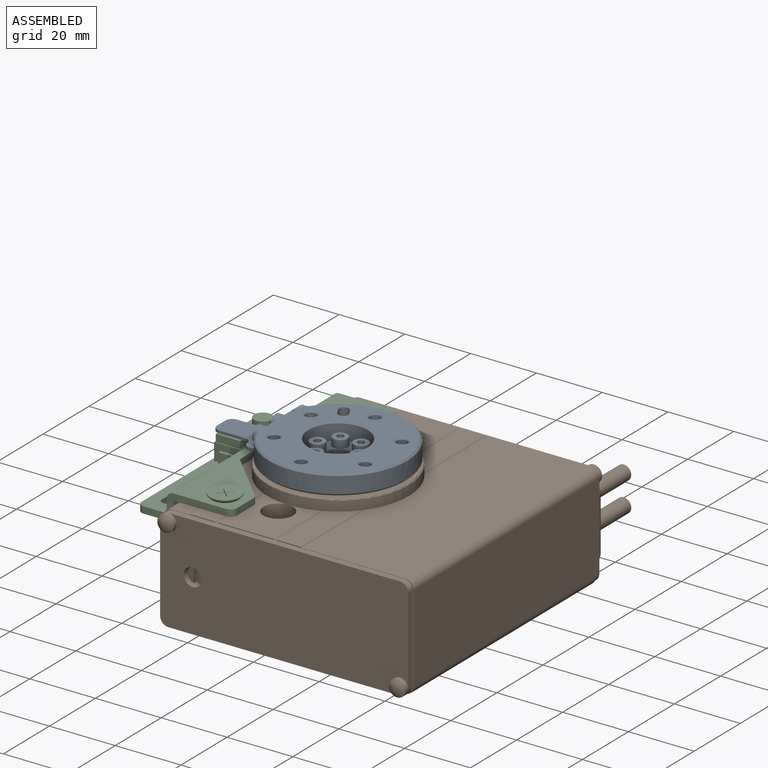
[diagram: assembled view]
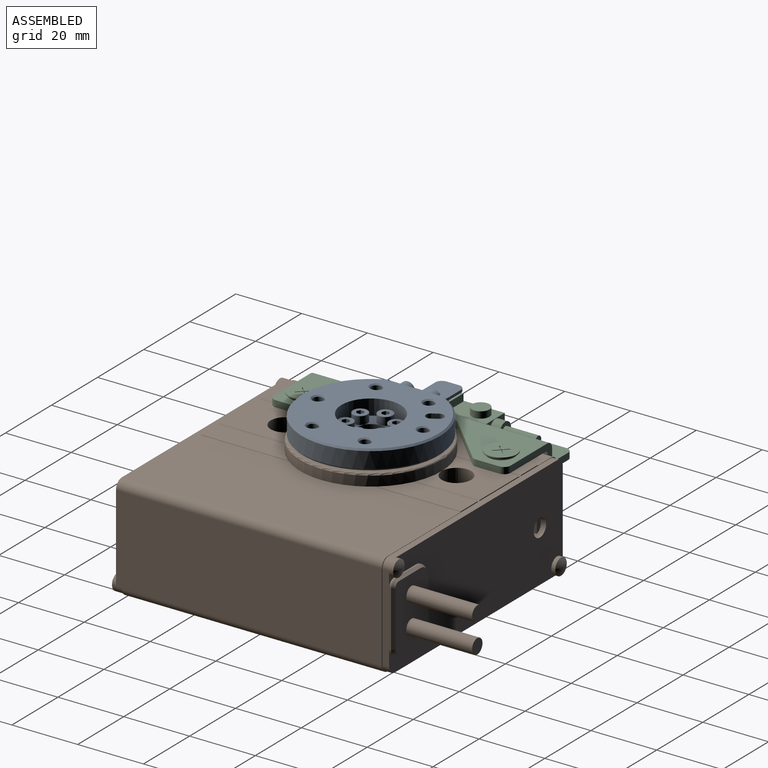
[diagram: assembled view, second angle]
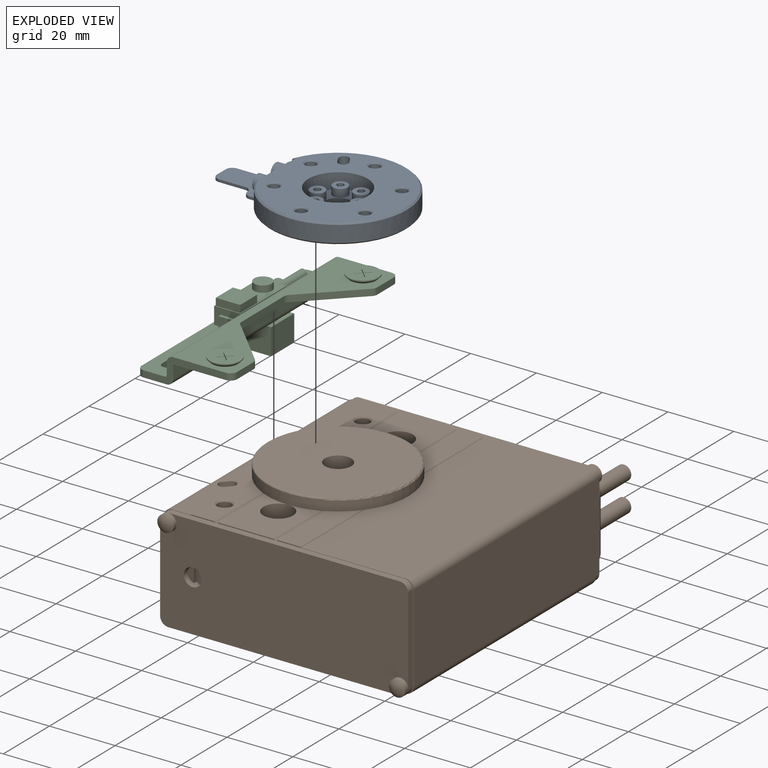
[diagram: exploded view]
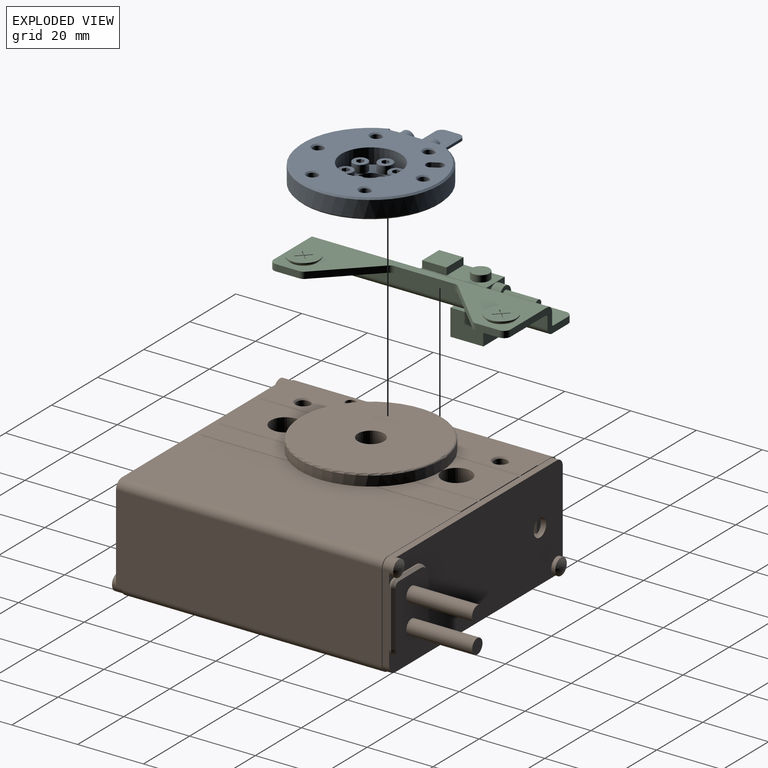
[diagram: exploded view, second angle]
ASSEMBLY  parts=3 mates=2
PART A: 116 faces, bbox 56.5x42x6.5 mm
  f0: plane 2.31x2mm, normal (0,0,1), area 3.5mm2, adj f6,f7,f8,f9,f10,f11
  f1: plane 2.31x2mm, normal (0,0,1), area 3.5mm2, adj f12,f13,f14,f15,f16,f17
  f2: plane 2.31x2mm, normal (0,0,1), area 3.5mm2, adj f18,f19,f20,f21,f22,f23
  f3: plane 2.31x2mm, normal (0,0,1), area 3.5mm2, adj f24,f25,f26,f27,f28,f29
  f4: plane 2.31x2mm, normal (0,0,1), area 3.5mm2, adj f30,f31,f32,f33,f34,f35
  f5: plane 2.31x2mm, normal (0,0,1), area 3.5mm2, adj f36,f37,f38,f39,f40,f41
  f6: plane 1.25x1mm, normal (-0.5,0.87,0), area 1.4mm2, adj f0,f7,f11,f46
  f7: plane 1.25x1mm, normal (0.5,0.87,0), area 1.4mm2, adj f0,f6,f8,f46
  f8: plane 1.25x1.15mm, normal (1,0,0), area 1.4mm2, adj f0,f7,f9,f46
  f9: plane 1.25x1mm, normal (0.5,-0.87,0), area 1.4mm2, adj f0,f8,f10,f46
  f10: plane 1.25x1mm, normal (-0.5,-0.87,0), area 1.4mm2, adj f0,f9,f11,f46
  f11: plane 1.25x1.15mm, normal (-1,0,0), area 1.4mm2, adj f0,f6,f10,f46
  f12: plane 1.25x1mm, normal (-0.5,0.87,0), area 1.4mm2, adj f1,f13,f17,f47
  f13: plane 1.25x1mm, normal (0.5,0.87,0), area 1.4mm2, adj f1,f12,f14,f47
  f14: plane 1.25x1.15mm, normal (1,0,0), area 1.4mm2, adj f1,f13,f15,f47
  f15: plane 1.25x1mm, normal (0.5,-0.87,0), area 1.4mm2, adj f1,f14,f16,f47
  f16: plane 1.25x1mm, normal (-0.5,-0.87,0), area 1.4mm2, adj f1,f15,f17,f47
  f17: plane 1.25x1.15mm, normal (-1,0,0), area 1.4mm2, adj f1,f12,f16,f47
  f18: plane 1.25x1mm, normal (-0.5,0.87,0), area 1.4mm2, adj f2,f19,f23,f48
  f19: plane 1.25x1mm, normal (0.5,0.87,0), area 1.4mm2, adj f2,f18,f20,f48
  f20: plane 1.25x1.15mm, normal (1,0,0), area 1.4mm2, adj f2,f19,f21,f48
  f21: plane 1.25x1mm, normal (0.5,-0.87,0), area 1.4mm2, adj f2,f20,f22,f48
  f22: plane 1.25x1mm, normal (-0.5,-0.87,0), area 1.4mm2, adj f2,f21,f23,f48
  f23: plane 1.25x1.15mm, normal (-1,0,0), area 1.4mm2, adj f2,f18,f22,f48
  f24: plane 1.25x1mm, normal (-0.5,0.87,0), area 1.4mm2, adj f3,f25,f29,f49
  f25: plane 1.25x1mm, normal (0.5,0.87,0), area 1.4mm2, adj f3,f24,f26,f49
  f26: plane 1.25x1.15mm, normal (1,0,0), area 1.4mm2, adj f3,f25,f27,f49
  f27: plane 1.25x1mm, normal (0.5,-0.87,0), area 1.4mm2, adj f3,f26,f28,f49
  f28: plane 1.25x1mm, normal (-0.5,-0.87,0), area 1.4mm2, adj f3,f27,f29,f49
  f29: plane 1.25x1.15mm, normal (-1,0,0), area 1.4mm2, adj f3,f24,f28,f49
  f30: plane 1.25x1mm, normal (-0.5,0.87,0), area 1.4mm2, adj f4,f31,f35,f50
  f31: plane 1.25x1mm, normal (0.5,0.87,0), area 1.4mm2, adj f4,f30,f32,f50
  f32: plane 1.25x1.15mm, normal (1,0,0), area 1.4mm2, adj f4,f31,f33,f50
  f33: plane 1.25x1mm, normal (0.5,-0.87,0), area 1.4mm2, adj f4,f32,f34,f50
  f34: plane 1.25x1mm, normal (-0.5,-0.87,0), area 1.4mm2, adj f4,f33,f35,f50
  f35: plane 1.25x1.15mm, normal (-1,0,0), area 1.4mm2, adj f4,f30,f34,f50
  f36: plane 1.25x1mm, normal (-0.5,0.87,0), area 1.4mm2, adj f5,f37,f41,f51
  f37: plane 1.25x1mm, normal (0.5,0.87,0), area 1.4mm2, adj f5,f36,f38,f51
  f38: plane 1.25x1.15mm, normal (1,0,0), area 1.4mm2, adj f5,f37,f39,f51
  f39: plane 1.25x1mm, normal (0.5,-0.87,0), area 1.4mm2, adj f5,f38,f40,f51
  f40: plane 1.25x1mm, normal (-0.5,-0.87,0), area 1.4mm2, adj f5,f39,f41,f51
  f41: plane 1.25x1.15mm, normal (-1,0,0), area 1.4mm2, adj f5,f36,f40,f51
  f42: plane 4.3x4.3mm, normal (-1,0,0), area 14.5mm2, adj f52
  f43: plane 4.3x4.3mm, normal (-1,0,0), area 14.5mm2, adj f53
  f44: plane 0.8x0.1mm, normal (1,0,0), area 0.1mm2, adj f54,f55,f72,f78
  f45: plane 0.8x0.1mm, normal (1,0,0), area 0.1mm2, adj f61,f62,f72,f78
  f46: plane 4.3x4.3mm, normal (0,0,1), area 11.1mm2, adj f6,f7,f8,f9,f10,f11,f64
  f47: plane 4.3x4.3mm, normal (0,0,1), area 11.1mm2, adj f12,f13,f14,f15,f16,f17,f65
  f48: plane 4.3x4.3mm, normal (0,0,1), area 11.1mm2, adj f18,f19,f20,f21,f22,f23,f66
  f49: plane 4.3x4.3mm, normal (0,0,1), area 11.1mm2, adj f24,f25,f26,f27,f28,f29,f67
  f50: plane 4.3x4.3mm, normal (0,0,1), area 11.1mm2, adj f30,f31,f32,f33,f34,f35,f68
  f51: plane 4.3x4.3mm, normal (0,0,1), area 11.1mm2, adj f36,f37,f38,f39,f40,f41,f69
  f52: torus R=2.15mm, axis (1,0,0), area 2.2mm2, adj f42,f73
  f53: torus R=2.15mm, axis (1,0,0), area 2.2mm2, adj f43,f74
  f54: cylinder r=2mm len=2mm, axis (0,0,-1), area 2.5mm2, adj f44,f72,f75,f78
  f55: cylinder r=2mm len=2mm, axis (0,0,-1), area 2.5mm2, adj f44,f56,f72,f78
  f56: plane 8x0.8mm, normal (0,-1,0), area 6.4mm2, adj f55,f57,f72,f78
  f57: cylinder r=2mm len=2mm, axis (0,0,-1), area 2.5mm2, adj f56,f58,f72,f78
  f58: plane 3.8x0.8mm, normal (-1,0,0), area 3mm2, adj f57,f59,f72,f78
  f59: cylinder r=2mm len=2mm, axis (0,0,-1), area 2.5mm2, adj f58,f60,f72,f78
  f60: plane 8x0.8mm, normal (0,1,0), area 6.4mm2, adj f59,f61,f72,f78
  f61: cylinder r=2mm len=2mm, axis (0,0,-1), area 2.5mm2, adj f45,f60,f72,f78
  f62: cylinder r=2mm len=2mm, axis (0,0,-1), area 2.5mm2, adj f45,f71,f72,f78
  f63: torus R=13mm, axis (0,0,-1), area 62.6mm2, adj f70,f78
  f64: cone r=0mm half-angle=45deg, axis (0,0,-1), area 2mm2, adj f46,f79
  f65: cone r=0mm half-angle=45deg, axis (0,0,-1), area 2mm2, adj f47,f80
  f66: cone r=0mm half-angle=45deg, axis (0,0,-1), area 2mm2, adj f48,f81
  f67: cone r=0mm half-angle=45deg, axis (0,0,-1), area 2mm2, adj f49,f82
  f68: cone r=0mm half-angle=45deg, axis (0,0,-1), area 2mm2, adj f50,f83
  f69: cone r=0mm half-angle=45deg, axis (0,0,-1), area 2mm2, adj f51,f84
  f70: plane 25x25mm, normal (0,0,-1), area 440.6mm2, adj f63,f85
  f71: plane 2.54x0.8mm, normal (0,1,0), area 1.7mm2, adj f62,f72,f77,f78,f90
  f72: plane 16.2x15.6mm, normal (0,0,1), area 157.4mm2, adj f44,f45,f54,f55,f56,f57,f58,f59
  f73: cylinder r=2.25mm len=4.5mm, axis (1,0,0), area 33.9mm2, adj f52,f89
  f74: cylinder r=2.25mm len=4.5mm, axis (1,0,0), area 33.9mm2, adj f53,f89
  f75: plane 2.54x0.8mm, normal (0,-1,0), area 1.7mm2, adj f54,f72,f76,f78,f90
  f76: cone r=0mm half-angle=45deg, axis (0,0,1), area 17.4mm2, adj f75,f77,f78,f90
  f77: cone r=0mm half-angle=45deg, axis (0,0,1), area 63.5mm2, adj f71,f76,f78,f90
  f78: plane 56x41mm, normal (0,0,-1), area 886.4mm2, adj f44,f45,f54,f55,f56,f57,f58,f59
  f79: cylinder r=2.25mm len=4.5mm, axis (0,0,-1), area 33.9mm2, adj f64,f97
  f80: cylinder r=2.25mm len=4.5mm, axis (0,0,-1), area 33.9mm2, adj f65,f97
  f81: cylinder r=2.25mm len=4.5mm, axis (0,0,-1), area 33.9mm2, adj f66,f97
  f82: cylinder r=2.25mm len=4.5mm, axis (0,0,-1), area 33.9mm2, adj f67,f97
  f83: cylinder r=2.25mm len=4.5mm, axis (0,0,-1), area 33.9mm2, adj f68,f97
  f84: cylinder r=2.25mm len=4.5mm, axis (0,0,-1), area 33.9mm2, adj f69,f97
  f85: cylinder r=4mm len=8mm, axis (0,0,-1), area 45.2mm2, adj f70,f97
  f86: cylinder r=2mm len=2mm, axis (1,0,0), area 2.5mm2, adj f87,f89,f99,f100
  f87: plane 11.6x0.8mm, normal (0,0,1), area 9.3mm2, adj f86,f88,f89,f100
  f88: cylinder r=2mm len=2mm, axis (1,0,0), area 2.5mm2, adj f87,f89,f100,f101
  f89: plane 15.6x4.8mm, normal (-1,0,0), area 41.4mm2, adj f72,f73,f74,f86,f87,f88,f99,f101
  f90: cylinder r=21mm len=42mm, axis (0,0,-1), area 579.8mm2, adj f71,f75,f76,f77,f98,f99,f101,f102
  f91: cylinder r=1.62mm len=5.62mm, axis (0,0,-1), area 57.3mm2, adj f78,f103
  f92: cylinder r=1.62mm len=5.62mm, axis (0,0,-1), area 57.3mm2, adj f78,f104
  f93: cylinder r=1.62mm len=5.62mm, axis (0,0,-1), area 57.3mm2, adj f78,f105
  f94: cylinder r=1.62mm len=5.62mm, axis (0,0,-1), area 57.3mm2, adj f78,f106
  f95: cylinder r=1.62mm len=5.62mm, axis (0,0,-1), area 57.3mm2, adj f78,f107
  f96: cylinder r=1.62mm len=5.62mm, axis (0,0,-1), area 57.3mm2, adj f78,f108
  f97: plane 18x18mm, normal (0,0,1), area 108.8mm2, adj f79,f80,f81,f82,f83,f84,f85,f110
  f98: cone r=0mm half-angle=45deg, axis (0,0,-1), area 17.4mm2, adj f90,f99,f102,f113
  f99: plane 5.2x1mm, normal (0,-1,0), area 2.8mm2, adj f72,f86,f89,f90,f98,f100,f113
  f100: plane 15.6x2.4mm, normal (-1,0,0), area 8mm2, adj f86,f87,f88,f99,f101,f113
  f101: plane 5.2x1mm, normal (0,1,0), area 2.8mm2, adj f72,f88,f89,f90,f100,f102,f113
  f102: cone r=0mm half-angle=45deg, axis (0,0,-1), area 63.5mm2, adj f90,f98,f101,f113
  f103: cone r=0mm half-angle=45deg, axis (0,0,1), area 6.1mm2, adj f91,f113
  f104: cone r=0mm half-angle=45deg, axis (0,0,1), area 6.1mm2, adj f92,f113
  f105: cone r=0mm half-angle=45deg, axis (0,0,1), area 6.1mm2, adj f93,f113
  f106: cone r=0mm half-angle=45deg, axis (0,0,1), area 6.1mm2, adj f94,f113
  f107: cone r=0mm half-angle=45deg, axis (0,0,1), area 6.1mm2, adj f95,f113
  f108: cone r=0mm half-angle=45deg, axis (0,0,1), area 6.1mm2, adj f96,f113
  f109: plane 4x1.73mm, normal (0.87,0.5,0), area 8mm2, adj f111,f112,f113,f115
  f110: cylinder r=9mm len=18mm, axis (0,0,-1), area 265.8mm2, adj f97,f113
  f111: cylinder r=1.5mm len=4mm, axis (0,0,1), area 18.8mm2, adj f109,f112,f113,f114
  f112: plane 4.73x4mm, normal (0,0,1), area 13.1mm2, adj f109,f111,f114,f115
  f113: plane 41x39.46mm, normal (0,0,1), area 954mm2, adj f98,f99,f100,f101,f102,f103,f104,f105
  f114: plane 4x1.73mm, normal (-0.87,-0.5,0), area 8mm2, adj f111,f112,f113,f115
  f115: cylinder r=1.5mm len=4mm, axis (0,0,1), area 18.8mm2, adj f109,f112,f113,f114
PART B: 127 faces, bbox 76x106.6x35.5 mm
  f0: plane 4.5x4.5mm, normal (0,1,0), area 15.9mm2, adj f2
  f1: plane 4.5x4.5mm, normal (0,1,0), area 15.9mm2, adj f3
  f2: cylinder r=2.25mm len=20mm, axis (0,-1,0), area 282.7mm2, adj f0,f18
  f3: cylinder r=2.25mm len=20mm, axis (0,-1,0), area 282.7mm2, adj f1,f18
  f4: plane 4.77x1.75mm, normal (0,1,0), area 6.1mm2, adj f5,f19
  f5: plane 4.77x1mm, normal (-1,0,0), area 4.8mm2, adj f4,f6,f19
  f6: plane 5x1.5mm, normal (0,1,0), area 7.4mm2, adj f5,f7,f19
  f7: plane 4.77x1mm, normal (1,0,0), area 4.8mm2, adj f6,f8,f19
  f8: plane 4.77x1.75mm, normal (0,1,0), area 6.1mm2, adj f7,f19
  f9: plane 5.2x5.2mm, normal (0,0,1), area 2.2mm2, adj f16,f21
  f10: plane 5.2x5.2mm, normal (0,0,1), area 2.2mm2, adj f17,f22
  f11: plane 4.77x1.75mm, normal (0,-1,0), area 6.1mm2, adj f12,f24
  f12: plane 4.77x1mm, normal (1,0,0), area 4.8mm2, adj f11,f13,f24
  f13: plane 5x1.5mm, normal (0,-1,0), area 7.4mm2, adj f12,f14,f24
  f14: plane 4.77x1mm, normal (-1,0,0), area 4.8mm2, adj f13,f15,f24
  f15: plane 4.77x1.75mm, normal (0,-1,0), area 6.1mm2, adj f14,f24
  f16: cylinder r=2.6mm len=14.5mm, axis (0,0,1), area 236.9mm2, adj f9,f26
  f17: cylinder r=2.6mm len=14.5mm, axis (0,0,-1), area 236.9mm2, adj f10,f27
  f18: plane 19.85x14.35mm, normal (0,1,0), area 247mm2, adj f2,f3,f28,f29,f30,f31,f32,f33
  f19: cylinder r=2.5mm len=5mm, axis (0,1,0), area 20.5mm2, adj f4,f5,f6,f7,f8,f36
  f20: plane 15x15mm, normal (0,0,-1), area 126.4mm2, adj f25,f37
  f21: cylinder r=2.46mm len=11.46mm, axis (0,0,-1), area 177mm2, adj f9,f38
  f22: cylinder r=2.46mm len=11.46mm, axis (0,0,1), area 177mm2, adj f10,f39
  f23: plane 5x3mm, normal (0,0,-1), area 13.1mm2, adj f40,f41,f42,f43
  f24: cylinder r=2.5mm len=5mm, axis (0,-1,0), area 20.5mm2, adj f11,f12,f13,f14,f15,f45
  f25: cylinder r=4mm len=28.5mm, axis (0,0,-1), area 716.3mm2, adj f20,f47
  f26: plane 9x9mm, normal (0,0,1), area 42.4mm2, adj f16,f48
  f27: plane 9x9mm, normal (0,0,1), area 42.4mm2, adj f17,f50
  f28: plane 9.5x1mm, normal (0,0.5,0.87), area 11mm2, adj f18,f29,f35,f53
  f29: cone r=0mm half-angle=30deg, axis (0,-1,0), area 6.7mm2, adj f18,f28,f30,f54
  f30: plane 13x1mm, normal (-0.87,0.5,0), area 15mm2, adj f18,f29,f31,f55
  f31: cone r=0mm half-angle=30deg, axis (0,-1,0), area 6.7mm2, adj f18,f30,f32,f56
  f32: plane 9.5x1mm, normal (0,0.5,-0.87), area 11mm2, adj f18,f31,f33,f57
  f33: cone r=0mm half-angle=30deg, axis (0,-1,0), area 3.1mm2, adj f18,f32,f34,f58
  f34: plane 17x1mm, normal (0.87,0.5,0), area 19.6mm2, adj f18,f33,f35,f59
  f35: cone r=0mm half-angle=30deg, axis (0,-1,0), area 3.1mm2, adj f18,f28,f34,f60
  f36: plane 5.4x5.4mm, normal (0,1,0), area 3.3mm2, adj f19,f61
  f37: cylinder r=7.5mm len=15mm, axis (0,0,-1), area 329.9mm2, adj f20,f63
  f38: cone r=0mm half-angle=45deg, axis (0,0,-1), area 13.1mm2, adj f21,f63
  f39: cone r=0mm half-angle=45deg, axis (0,0,-1), area 13.1mm2, adj f22,f63
  f40: cylinder r=1.5mm len=4mm, axis (0,0,-1), area 18.8mm2, adj f23,f41,f43,f63
  f41: plane 4x2mm, normal (1,0,0), area 8mm2, adj f23,f40,f42,f63
  f42: cylinder r=1.5mm len=4mm, axis (0,0,-1), area 18.8mm2, adj f23,f41,f43,f63
  f43: plane 4x2mm, normal (-1,0,0), area 8mm2, adj f23,f40,f42,f63
  f44: plane 79x0.2mm, normal (0.87,0,-0.5), area 18.2mm2, adj f63,f64,f92,f94
  f45: plane 5.4x5.4mm, normal (0,-1,0), area 3.3mm2, adj f24,f71
  f46: cone r=0mm half-angle=60deg, axis (0,0,1), area 15.5mm2, adj f72
  f47: plane 42x42mm, normal (0,0,1), area 1335.3mm2, adj f25,f73
  f48: cylinder r=4.5mm len=9mm, axis (0,0,1), area 155.5mm2, adj f26,f74
  f49: plane 79x0.2mm, normal (0.86,0,0.51), area 18.4mm2, adj f68,f75,f76,f77,f92,f94
  f50: cylinder r=4.5mm len=9mm, axis (0,0,-1), area 155.5mm2, adj f27,f79
  f51: cone r=0mm half-angle=60deg, axis (0,0,1), area 15.5mm2, adj f80
  f52: sphere r=4mm, area 22.1mm2, adj f83
  f53: plane 9.5x0.5mm, normal (0,0,1), area 4.8mm2, adj f28,f54,f60,f90
  f54: cylinder r=4mm len=4mm, axis (0,-1,0), area 3.1mm2, adj f29,f53,f55,f90
  f55: plane 13x0.5mm, normal (-1,0,0), area 6.5mm2, adj f30,f54,f56,f90
  f56: cylinder r=4mm len=4mm, axis (0,-1,0), area 3.1mm2, adj f31,f55,f57,f90
  f57: plane 9.5x0.5mm, normal (0,0,-1), area 4.8mm2, adj f32,f56,f58,f90
  f58: cylinder r=2mm len=2mm, axis (0,-1,0), area 1.6mm2, adj f33,f57,f59,f90
  f59: plane 17x0.5mm, normal (1,0,0), area 8.5mm2, adj f34,f58,f60,f90
  f60: cylinder r=2mm len=2mm, axis (0,-1,0), area 1.6mm2, adj f35,f53,f59,f90
  f61: cylinder r=2.7mm len=5.4mm, axis (0,1,0), area 50.9mm2, adj f36,f90
  f62: plane 26.4x2mm, normal (1,0,0), area 52.8mm2, adj f83,f90,f91,f92
  f63: plane 79x21.17mm, normal (0,0,-1), area 1426.1mm2, adj f37,f38,f39,f40,f41,f42,f43,f44
  f64: plane 79x36.21mm, normal (0,0,-1), area 2860.9mm2, adj f44,f65,f92,f94
  f65: cylinder r=2.5mm len=79mm, axis (0,1,0), area 310.2mm2, adj f64,f66,f92,f94
  f66: plane 79x26.6mm, normal (1,0,0), area 2101.4mm2, adj f65,f67,f92,f94
  f67: cylinder r=2.5mm len=79mm, axis (0,1,0), area 310.2mm2, adj f66,f68,f92,f94
  f68: plane 79x31.71mm, normal (0,0,1), area 2505.1mm2, adj f49,f67,f92,f94
  f69: sphere r=4mm, area 22.1mm2, adj f95
  f70: plane 26.4x2mm, normal (1,0,0), area 52.8mm2, adj f84,f94,f95,f97
  f71: cylinder r=2.7mm len=5.4mm, axis (0,-1,0), area 50.9mm2, adj f45,f97
  f72: cylinder r=2.07mm len=4.57mm, axis (0,0,-1), area 59.3mm2, adj f46,f98
  f73: torus R=21mm, axis (0,0,-1), area 105.2mm2, adj f47,f99
  f74: plane 20.25x17mm, normal (0,0,1), area 260.6mm2, adj f48,f86,f87,f88,f99
  f75: plane 26.42x7.17mm, normal (0,0,1), area 166mm2, adj f49,f82,f94,f99
  f76: plane 27.16x4.83mm, normal (0,0,-1), area 89.6mm2, adj f49,f99
  f77: plane 25.42x7.17mm, normal (0,0,1), area 158.8mm2, adj f49,f82,f92,f99
  f78: plane 39.5x1mm, normal (0,0,-1), area 39mm2, adj f82,f86,f99
  f79: plane 19.25x17mm, normal (0,0,1), area 243.6mm2, adj f50,f85,f86,f88,f99
  f80: cylinder r=2.07mm len=4.57mm, axis (0,0,1), area 59.3mm2, adj f51,f100
  f81: sphere r=4mm, area 22.1mm2, adj f101
  f82: plane 79x0.3mm, normal (-0.71,0,0.71), area 33.5mm2, adj f75,f77,f78,f92,f94,f104
  f83: cylinder r=2.5mm len=5mm, axis (0,-1,0), area 27.1mm2, adj f52,f62,f90,f92,f104
  f84: cylinder r=2.5mm len=2.5mm, axis (0,1,0), area 7.9mm2, adj f70,f94,f97,f104
  f85: plane 17.6x0.3mm, normal (0,1,0), area 5.2mm2, adj f79,f86,f88,f104
  f86: plane 79x0.3mm, normal (0.71,0,0.71), area 33.5mm2, adj f74,f78,f79,f85,f87,f104
  f87: plane 17.6x0.3mm, normal (0,-1,0), area 5.2mm2, adj f74,f86,f88,f104
  f88: plane 79x0.3mm, normal (-0.71,0,0.71), area 33.5mm2, adj f74,f79,f85,f87,f89,f104
  f89: plane 39.5x1mm, normal (0,0,-1), area 39mm2, adj f88,f99,f105
  f90: plane 75.4x31.4mm, normal (0,1,0), area 1983.1mm2, adj f53,f54,f55,f56,f57,f58,f59,f60
  f91: cylinder r=2.5mm len=2.5mm, axis (0,-1,0), area 7.9mm2, adj f62,f90,f92,f110
  f92: plane 60.9x32mm, normal (0,1,0), area 25.5mm2, adj f44,f49,f62,f63,f64,f65,f66,f67
  f93: cylinder r=1.5mm len=79mm, axis (0,1,0), area 76.3mm2, adj f63,f92,f94,f110
  f94: plane 60.9x32mm, normal (0,-1,0), area 25.5mm2, adj f44,f49,f63,f64,f65,f66,f67,f68
  f95: cylinder r=2.5mm len=5mm, axis (0,1,0), area 27.1mm2, adj f69,f70,f94,f97,f110
  f96: sphere r=4mm, area 22.1mm2, adj f113
  f97: plane 75.4x31.4mm, normal (0,-1,0), area 2300mm2, adj f70,f71,f84,f95,f104,f110,f111,f112
  f98: cone r=0mm half-angle=45deg, axis (0,0,1), area 8.8mm2, adj f72,f114
  f99: cylinder r=21.5mm len=43mm, axis (0,0,-1), area 405.3mm2, adj f73,f74,f75,f76,f77,f78,f79,f89
  f100: cone r=0mm half-angle=45deg, axis (0,0,1), area 8.8mm2, adj f80,f116
  f101: cylinder r=2.5mm len=5mm, axis (0,-1,0), area 27.1mm2, adj f81,f90,f103,f110,f117
  f102: cylinder r=2.5mm len=2.5mm, axis (0,-1,0), area 7.9mm2, adj f90,f103,f104,f117
  f103: plane 26.4x2mm, normal (-1,0,0), area 52.8mm2, adj f90,f101,f102,f117
  f104: plane 83x70.4mm, normal (0,0,1), area 344.8mm2, adj f82,f83,f84,f85,f86,f87,f88,f90
  f105: plane 79x0.3mm, normal (0.71,0,0.71), area 33.5mm2, adj f89,f104,f114,f116,f117,f119
  f106: plane 79x26.8mm, normal (-1,0,0), area 2117.2mm2, adj f107,f117,f118,f119
  f107: cylinder r=2.5mm len=79mm, axis (0,1,0), area 310.2mm2, adj f106,f108,f117,f119
  f108: plane 79x4mm, normal (0,0,-1), area 316mm2, adj f107,f109,f117,f119
  f109: cylinder r=1.5mm len=79mm, axis (0,1,0), area 76.3mm2, adj f108,f110,f117,f119
  f110: plane 83x70.4mm, normal (0,0,-1), area 889.9mm2, adj f90,f91,f92,f93,f94,f95,f97,f101
  f111: cylinder r=2.5mm len=2.5mm, axis (0,1,0), area 7.9mm2, adj f97,f110,f112,f119
  f112: plane 26.4x2mm, normal (-1,0,0), area 52.8mm2, adj f97,f111,f113,f119
  f113: cylinder r=2.5mm len=5mm, axis (0,1,0), area 27.1mm2, adj f96,f97,f104,f112,f119
  f114: plane 26.42x7.17mm, normal (0,0,1), area 146.3mm2, adj f98,f99,f105,f119,f120
  f115: plane 27.16x4.83mm, normal (0,0,-1), area 89.6mm2, adj f99,f120
  f116: plane 25.42x7.17mm, normal (0,0,1), area 139.1mm2, adj f99,f100,f105,f117,f120
  f117: plane 32x15.8mm, normal (0,1,0), area 14.6mm2, adj f101,f102,f103,f104,f105,f106,f107,f108
  f118: cylinder r=2.5mm len=79mm, axis (0,1,0), area 310.2mm2, adj f106,f117,f119,f124
  f119: plane 32x15.8mm, normal (0,-1,0), area 14.6mm2, adj f104,f105,f106,f107,f108,f109,f110,f111
  f120: plane 79x0.2mm, normal (-0.86,0,0.51), area 18.4mm2, adj f114,f115,f116,f117,f119,f124
  f121: plane 4x1.41mm, normal (0.71,-0.71,0), area 8mm2, adj f122,f123,f124,f126
  f122: cylinder r=1.5mm len=4mm, axis (0,0,1), area 18.8mm2, adj f121,f123,f124,f125
  f123: plane 4.41x4.41mm, normal (0,0,1), area 13.1mm2, adj f121,f122,f125,f126
  f124: plane 79x5.71mm, normal (0,0,1), area 438mm2, adj f117,f118,f119,f120,f121,f122,f125,f126
  f125: plane 4x1.41mm, normal (-0.71,0.71,0), area 8mm2, adj f122,f123,f124,f126
  f126: cylinder r=1.5mm len=4mm, axis (0,0,1), area 18.8mm2, adj f121,f123,f124,f125
PART C: 92 faces, bbox 29x72x17.4 mm
  f0: plane 0.5x0.14mm, normal (0.71,-0.71,0), area 0.1mm2, adj f4,f10,f11,f27
  f1: plane 0.5x0.14mm, normal (-0.71,-0.71,0), area 0.1mm2, adj f4,f12,f13,f27
  f2: plane 0.5x0.14mm, normal (-0.71,0.71,0), area 0.1mm2, adj f4,f14,f15,f27
  f3: plane 0.5x0.14mm, normal (0.71,0.71,0), area 0.1mm2, adj f4,f16,f17,f27
  f4: plane 3.43x3.43mm, normal (0,0,1), area 1.8mm2, adj f0,f1,f2,f3,f10,f11,f12,f13
  f5: plane 0.5x0.14mm, normal (0.71,-0.71,0), area 0.1mm2, adj f9,f18,f19,f28
  f6: plane 0.5x0.14mm, normal (-0.71,-0.71,0), area 0.1mm2, adj f9,f20,f21,f28
  f7: plane 0.5x0.14mm, normal (-0.71,0.71,0), area 0.1mm2, adj f9,f22,f23,f28
  f8: plane 0.5x0.14mm, normal (0.71,0.71,0), area 0.1mm2, adj f9,f24,f25,f28
  f9: plane 3.43x3.43mm, normal (0,0,1), area 1.8mm2, adj f5,f6,f7,f8,f18,f19,f20,f21
  f10: plane 1.57x1.57mm, normal (0.71,0.71,0), area 1.1mm2, adj f0,f4,f17,f27
  f11: plane 1.57x1.57mm, normal (-0.71,-0.71,0), area 1.1mm2, adj f0,f4,f12,f27
  f12: plane 1.57x1.57mm, normal (0.71,-0.71,0), area 1.1mm2, adj f1,f4,f11,f27
  f13: plane 1.57x1.57mm, normal (-0.71,0.71,0), area 1.1mm2, adj f1,f4,f14,f27
  f14: plane 1.57x1.57mm, normal (-0.71,-0.71,0), area 1.1mm2, adj f2,f4,f13,f27
  f15: plane 1.57x1.57mm, normal (0.71,0.71,0), area 1.1mm2, adj f2,f4,f16,f27
  f16: plane 1.57x1.57mm, normal (-0.71,0.71,0), area 1.1mm2, adj f3,f4,f15,f27
  f17: plane 1.57x1.57mm, normal (0.71,-0.71,0), area 1.1mm2, adj f3,f4,f10,f27
  f18: plane 1.57x1.57mm, normal (0.71,0.71,0), area 1.1mm2, adj f5,f9,f25,f28
  f19: plane 1.57x1.57mm, normal (-0.71,-0.71,0), area 1.1mm2, adj f5,f9,f20,f28
  f20: plane 1.57x1.57mm, normal (0.71,-0.71,0), area 1.1mm2, adj f6,f9,f19,f28
  f21: plane 1.57x1.57mm, normal (-0.71,0.71,0), area 1.1mm2, adj f6,f9,f22,f28
  f22: plane 1.57x1.57mm, normal (-0.71,-0.71,0), area 1.1mm2, adj f7,f9,f21,f28
  f23: plane 1.57x1.57mm, normal (0.71,0.71,0), area 1.1mm2, adj f7,f9,f24,f28
  f24: plane 1.57x1.57mm, normal (-0.71,0.71,0), area 1.1mm2, adj f8,f9,f23,f28
  f25: plane 1.57x1.57mm, normal (0.71,-0.71,0), area 1.1mm2, adj f8,f9,f18,f28
  f26: plane 2.6x2.6mm, normal (0,1,0), area 5.3mm2, adj f29
  f27: plane 9.3x9.3mm, normal (0,0,1), area 66.1mm2, adj f0,f1,f2,f3,f10,f11,f12,f13
  f28: plane 9.3x9.3mm, normal (0,0,1), area 66.1mm2, adj f5,f6,f7,f8,f18,f19,f20,f21
  f29: cylinder r=1.3mm len=10mm, axis (0,1,0), area 81.7mm2, adj f26,f34
  f30: cylinder r=4.65mm len=9.3mm, axis (0,0,-1), area 9.3mm2, adj f27,f44
  f31: cylinder r=4.65mm len=9.3mm, axis (0,0,-1), area 9.3mm2, adj f28,f45
  f32: plane 5.4x5.4mm, normal (0,0,1), area 22.9mm2, adj f46
  f33: plane 7.4x7.4mm, normal (0,0,1), area 54.8mm2, adj f47,f48,f49,f50
  f34: plane 5x5mm, normal (0,1,0), area 14.3mm2, adj f29,f54
  f35: plane 7.17x2mm, normal (1,0,0), area 14.3mm2, adj f36,f57,f58,f59
  f36: cylinder r=2mm len=2mm, axis (0,0,1), area 3.1mm2, adj f35,f37,f57,f59
  f37: plane 14.83x14.83mm, normal (0.71,0.71,0), area 41.9mm2, adj f36,f38,f57,f59
  f38: cylinder r=2mm len=2mm, axis (0,0,1), area 3.1mm2, adj f37,f39,f57,f59
  f39: plane 18.34x2mm, normal (1,0,0), area 36.7mm2, adj f38,f40,f57,f59
  f40: cylinder r=2mm len=2mm, axis (0,0,1), area 3.1mm2, adj f39,f41,f57,f59
  f41: plane 14.83x14.83mm, normal (0.71,-0.71,0), area 41.9mm2, adj f40,f42,f57,f59
  f42: cylinder r=2mm len=2mm, axis (0,0,1), area 3.1mm2, adj f41,f43,f57,f59
  f43: plane 7.17x2mm, normal (1,0,0), area 14.3mm2, adj f42,f55,f57,f59
  f44: cone r=0mm half-angle=45deg, axis (0,0,1), area 26.7mm2, adj f30,f59
  f45: cone r=0mm half-angle=45deg, axis (0,0,1), area 26.7mm2, adj f31,f59
  f46: cylinder r=2.7mm len=5.4mm, axis (0,0,-1), area 33.9mm2, adj f32,f66
  f47: plane 7.4x2.2mm, normal (1,0,0), area 16.3mm2, adj f33,f48,f50,f66
  f48: plane 7.4x2.2mm, normal (0,-1,0), area 16.3mm2, adj f33,f47,f49,f66
  f49: plane 7.4x2.2mm, normal (-1,0,0), area 16.3mm2, adj f33,f48,f50,f66
  f50: plane 7.4x2.2mm, normal (0,1,0), area 16.3mm2, adj f33,f47,f49,f66
  f51: plane 10x10mm, normal (0,0,-1), area 100mm2, adj f52,f67,f68,f69
  f52: plane 10x8mm, normal (1,0,0), area 80mm2, adj f51,f53,f67,f69
  f53: plane 10x2mm, normal (0,0,1), area 20mm2, adj f52,f67,f69,f70
  f54: cylinder r=2.5mm len=5mm, axis (0,1,0), area 47.1mm2, adj f34,f76
  f55: cylinder r=2mm len=2mm, axis (0,0,1), area 6.3mm2, adj f43,f57,f59,f78
  f56: plane 20x3.5mm, normal (-1,0,0), area 70mm2, adj f60,f76,f77,f78
  f57: plane 72x17.5mm, normal (0,0,-1), area 682.3mm2, adj f35,f36,f37,f38,f39,f40,f41,f42
  f58: cylinder r=2mm len=2mm, axis (0,0,1), area 6.3mm2, adj f35,f57,f59,f82
  f59: plane 72x18mm, normal (0,0,1), area 620.2mm2, adj f35,f36,f37,f38,f39,f40,f41,f42
  f60: cylinder r=2mm len=72mm, axis (0,1,0), area 226.2mm2, adj f56,f59,f64,f65,f78,f82
  f61: plane 72x3.5mm, normal (1,0,0), area 252mm2, adj f62,f70,f78,f82
  f62: cylinder r=0.5mm len=72mm, axis (0,1,0), area 56.5mm2, adj f57,f61,f78,f82
  f63: plane 4x1mm, normal (0,0,1), area 4mm2, adj f71,f72,f73,f84
  f64: plane 32x3.5mm, normal (-1,0,0), area 112mm2, adj f60,f82,f83,f84
  f65: plane 20x1.2mm, normal (1,0,0), area 24mm2, adj f60,f66,f76,f84
  f66: plane 20x8mm, normal (0,0,1), area 82.3mm2, adj f46,f47,f48,f49,f50,f65,f74,f76
  f67: plane 10x8mm, normal (0,1,0), area 80mm2, adj f51,f52,f53,f68,f87,f88
  f68: plane 10x8mm, normal (-1,0,0), area 80mm2, adj f51,f67,f69,f88
  f69: plane 10x8mm, normal (0,-1,0), area 80mm2, adj f51,f52,f53,f68,f87,f88
  f70: cylinder r=2mm len=72mm, axis (0,1,0), area 226.2mm2, adj f53,f61,f78,f82,f88
  f71: plane 3.3x1mm, normal (1,0,0), area 3.3mm2, adj f63,f72,f84,f89
  f72: plane 4x3.3mm, normal (0,-1,0), area 13.2mm2, adj f63,f71,f73,f85,f89
  f73: plane 3.3x1mm, normal (-1,0,0), area 3.3mm2, adj f63,f72,f84,f89
  f74: plane 20x5.2mm, normal (-1,0,0), area 104mm2, adj f66,f76,f84,f89
  f75: plane 60x2mm, normal (1,0,0), area 120mm2, adj f85,f86,f87,f88,f89,f91
  f76: plane 8x5.2mm, normal (0,1,0), area 21.9mm2, adj f54,f56,f65,f66,f74,f77,f85,f89
  f77: cylinder r=0.5mm len=20mm, axis (0,1,0), area 15.7mm2, adj f56,f76,f78,f89
  f78: plane 25x8mm, normal (0,1,0), area 60.4mm2, adj f55,f56,f57,f59,f60,f61,f62,f70
  f79: cylinder r=2mm len=2mm, axis (0,0,-1), area 6.3mm2, adj f78,f80,f88,f89
  f80: plane 68x2mm, normal (-1,0,0), area 136mm2, adj f79,f81,f88,f89
  f81: cylinder r=2mm len=2mm, axis (0,0,-1), area 6.3mm2, adj f80,f82,f88,f89
  f82: plane 25x8mm, normal (0,-1,0), area 60.4mm2, adj f57,f58,f59,f60,f61,f62,f64,f70
  f83: cylinder r=0.5mm len=32mm, axis (0,1,0), area 25.1mm2, adj f64,f82,f84,f89
  f84: plane 8x5.2mm, normal (0,-1,0), area 28.3mm2, adj f63,f64,f65,f66,f71,f73,f74,f83
  f85: plane 21x3.2mm, normal (0,0,-1), area 67.2mm2, adj f72,f75,f76,f90
  f86: cylinder r=1.6mm len=3.2mm, axis (0,0,1), area 10.1mm2, adj f75,f88,f89,f90
  f87: plane 10x3.2mm, normal (0,0,1), area 32mm2, adj f67,f69,f75,f90
  f88: plane 72x9mm, normal (0,0,-1), area 398.2mm2, adj f67,f68,f69,f70,f75,f78,f79,f80
  f89: plane 72x8.5mm, normal (0,0,1), area 323.4mm2, adj f71,f72,f73,f74,f75,f76,f77,f78
  f90: plane 60x2mm, normal (-1,0,0), area 120mm2, adj f85,f86,f87,f88,f89,f91
  f91: cylinder r=1.6mm len=3.2mm, axis (0,0,1), area 10.1mm2, adj f75,f88,f89,f90
PLACE A t=(16.08,-37.6,11.94)mm
PLACE B t=(16.08,-37.6,11.94)mm
PLACE C t=(16.08,-37.46,11.92)mm
MATE fastened C.f27 <-> B.f46  axis (0,0,1) through (2.58,-67.6,46.94)mm
MATE revolute A.f63 <-> B.f25  axis (0,0,-1) through (16.08,-37.6,47.44)mm
